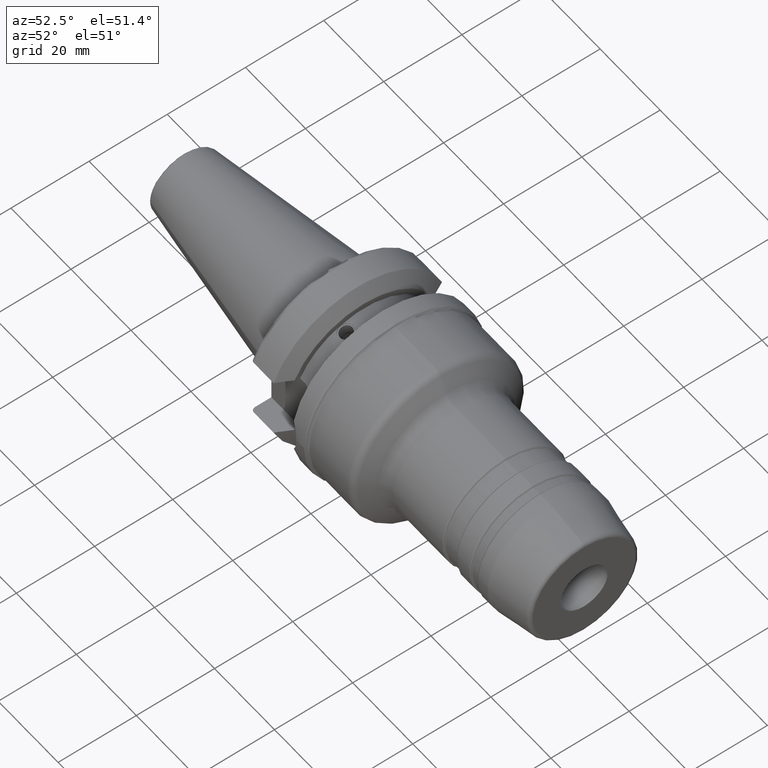
[diagram: clean part render]
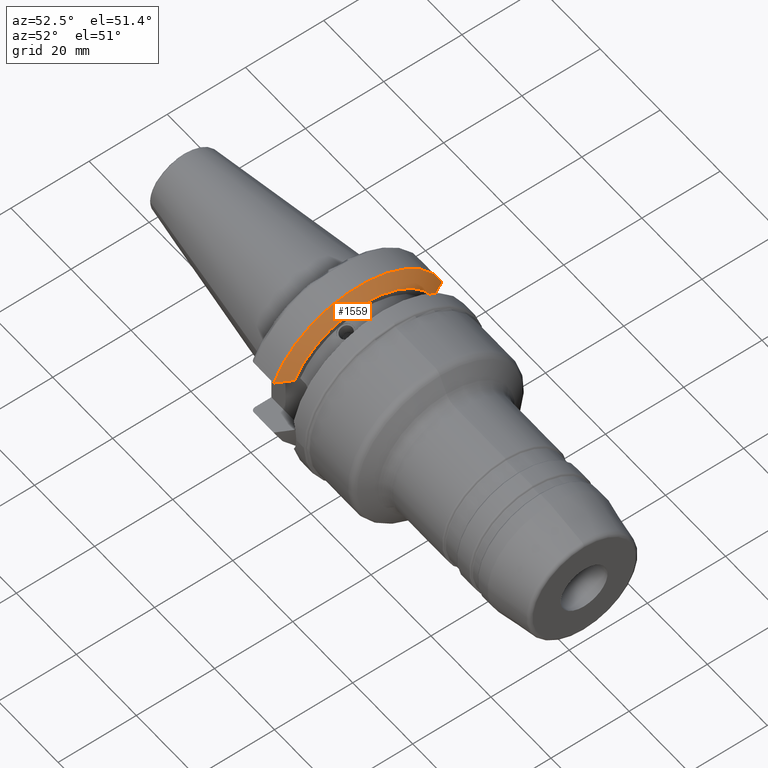
[diagram: same view with one face highlighted and labeled with its STEP entity id]
A machine part, auxiliary view. The second image highlights one B-rep face of the part: STEP entity #1559.
In plain terms, the highlighted conical surface has half-angle 60.125 deg.
Its self-contained STEP definition (entity closure, byte-faithful):
#15=(
BOUNDED_CURVE()
B_SPLINE_CURVE(2,(#2896,#2897,#2898),.UNSPECIFIED.,.F.,.F.)
B_SPLINE_CURVE_WITH_KNOTS((3,3),(0.,0.293084380504246),.UNSPECIFIED.)
CURVE()
GEOMETRIC_REPRESENTATION_ITEM()
RATIONAL_B_SPLINE_CURVE((1.,1.00176330635057,1.))
REPRESENTATION_ITEM('')
);
#18=(
BOUNDED_CURVE()
B_SPLINE_CURVE(2,(#3013,#3014,#3015),.UNSPECIFIED.,.F.,.F.)
B_SPLINE_CURVE_WITH_KNOTS((3,3),(0.,0.293084380504246),.UNSPECIFIED.)
CURVE()
GEOMETRIC_REPRESENTATION_ITEM()
RATIONAL_B_SPLINE_CURVE((1.,1.00176330634997,1.))
REPRESENTATION_ITEM('')
);
#57=B_SPLINE_CURVE_WITH_KNOTS('',3,(#2838,#2839,#2840,#2841,#2842,#2843),
 .UNSPECIFIED.,.F.,.F.,(4,2,4),(1.10704244252389,1.1108573462404,1.23909804538765),
 .UNSPECIFIED.);
#68=B_SPLINE_CURVE_WITH_KNOTS('',3,(#2993,#2994,#2995,#2996),
 .UNSPECIFIED.,.F.,.F.,(4,4),(5.0512271220615,5.18123969966481),
 .UNSPECIFIED.);
#116=CONICAL_SURFACE('',#1800,21.2331286619655,1.04937921276161);
#391=FACE_OUTER_BOUND('',#495,.T.);
#495=EDGE_LOOP('',(#1432,#1433,#1434,#1435,#1436,#1437));
#602=CIRCLE('',#1799,23.);
#603=CIRCLE('',#1801,19.466257323931);
#702=VERTEX_POINT('',#2834);
#704=VERTEX_POINT('',#2837);
#715=VERTEX_POINT('',#2895);
#729=VERTEX_POINT('',#2987);
#731=VERTEX_POINT('',#2991);
#734=VERTEX_POINT('',#3012);
#901=EDGE_CURVE('',#704,#702,#57,.T.);
#915=EDGE_CURVE('',#715,#704,#15,.T.);
#945=EDGE_CURVE('',#729,#731,#68,.T.);
#951=EDGE_CURVE('',#731,#734,#18,.T.);
#980=EDGE_CURVE('',#734,#715,#602,.T.);
#981=EDGE_CURVE('',#729,#702,#603,.T.);
#1432=ORIENTED_EDGE('',*,*,#901,.T.);
#1433=ORIENTED_EDGE('',*,*,#981,.F.);
#1434=ORIENTED_EDGE('',*,*,#945,.T.);
#1435=ORIENTED_EDGE('',*,*,#951,.T.);
#1436=ORIENTED_EDGE('',*,*,#980,.T.);
#1437=ORIENTED_EDGE('',*,*,#915,.T.);
#1559=ADVANCED_FACE('',(#391),#116,.T.);
#1799=AXIS2_PLACEMENT_3D('',#3073,#2307,#2308);
#1800=AXIS2_PLACEMENT_3D('',#3074,#2309,#2310);
#1801=AXIS2_PLACEMENT_3D('',#3075,#2311,#2312);
#2307=DIRECTION('center_axis',(1.,1.62798202122572E-21,0.));
#2308=DIRECTION('ref_axis',(0.,0.,-1.));
#2309=DIRECTION('center_axis',(-1.,-1.62798202122572E-21,0.));
#2310=DIRECTION('ref_axis',(0.,1.,0.));
#2311=DIRECTION('center_axis',(1.,1.62798202122572E-21,0.));
#2312=DIRECTION('ref_axis',(0.,0.,-1.));
#2834=CARTESIAN_POINT('',(11.6,-17.7357033748735,8.02371485036701));
#2837=CARTESIAN_POINT('',(10.95,-18.9595942383938,8.05));
#2838=CARTESIAN_POINT('Ctrl Pts',(10.95,-18.9595942383938,8.05));
#2839=CARTESIAN_POINT('Ctrl Pts',(10.9562557806344,-18.9477631556681,8.05));
#2840=CARTESIAN_POINT('Ctrl Pts',(10.9625118384736,-18.9359327756361,8.04999321957019));
#2841=CARTESIAN_POINT('Ctrl Pts',(11.1790865920839,-18.5264447527878,8.04947141492817));
#2842=CARTESIAN_POINT('Ctrl Pts',(11.3895462578573,-18.1300979399546,8.04076367811623));
#2843=CARTESIAN_POINT('Ctrl Pts',(11.6,-17.7357033748735,8.02371485036701));
#2895=CARTESIAN_POINT('',(9.57005904049381,-21.5452430944744,8.05));
#2896=CARTESIAN_POINT('Ctrl Pts',(9.57005904049381,-21.5452430944744,8.05));
#2897=CARTESIAN_POINT('Ctrl Pts',(10.3040741701992,-20.1811846958682,8.05));
#2898=CARTESIAN_POINT('Ctrl Pts',(10.95,-18.9595942383938,8.05));
#2987=CARTESIAN_POINT('',(11.6,17.7357033748735,8.02371485036701));
#2991=CARTESIAN_POINT('',(10.95,18.9595942383938,8.05));
#2993=CARTESIAN_POINT('Ctrl Pts',(11.6,17.7357033748735,8.02371485036701));
#2994=CARTESIAN_POINT('Ctrl Pts',(11.381492847094,18.1451901944475,8.04141608377791));
#2995=CARTESIAN_POINT('Ctrl Pts',(11.1645860488186,18.5537639441868,8.05));
#2996=CARTESIAN_POINT('Ctrl Pts',(10.95,18.9595942383938,8.05));
#3012=CARTESIAN_POINT('',(9.57005904049381,21.5452430944744,8.05));
#3013=CARTESIAN_POINT('Ctrl Pts',(10.95,18.9595942383938,8.05));
#3014=CARTESIAN_POINT('Ctrl Pts',(10.304074170198,20.1811846958705,8.05));
#3015=CARTESIAN_POINT('Ctrl Pts',(9.57005904049381,21.5452430944744,8.05));
#3073=CARTESIAN_POINT('Origin',(9.57005904049381,2.08175114951191E-15,0.));
#3074=CARTESIAN_POINT('Origin',(10.5850295202469,2.0817528018656E-15,0.));
#3075=CARTESIAN_POINT('Origin',(11.6,2.08175445421929E-15,0.));